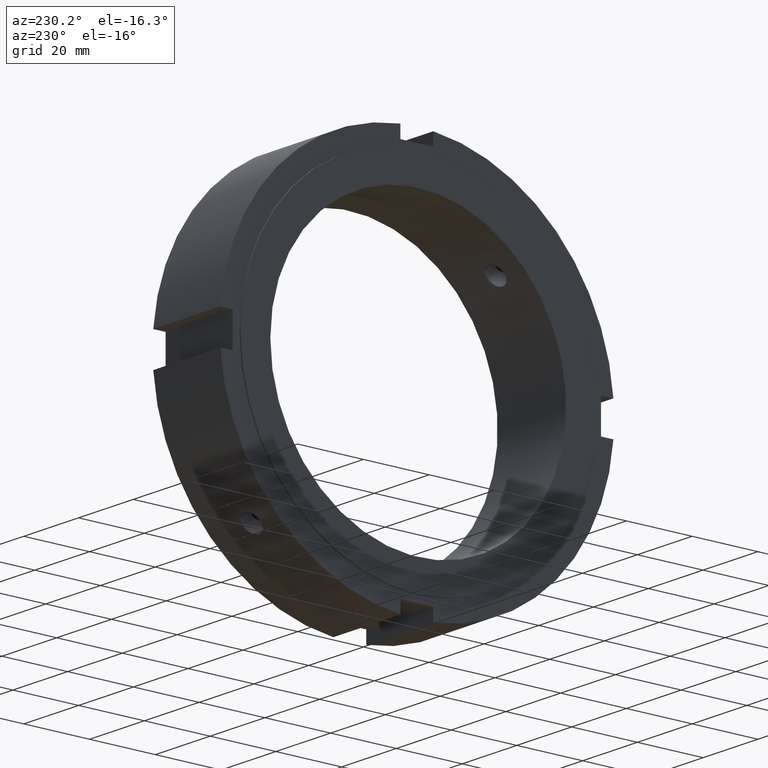
[diagram: clean part render]
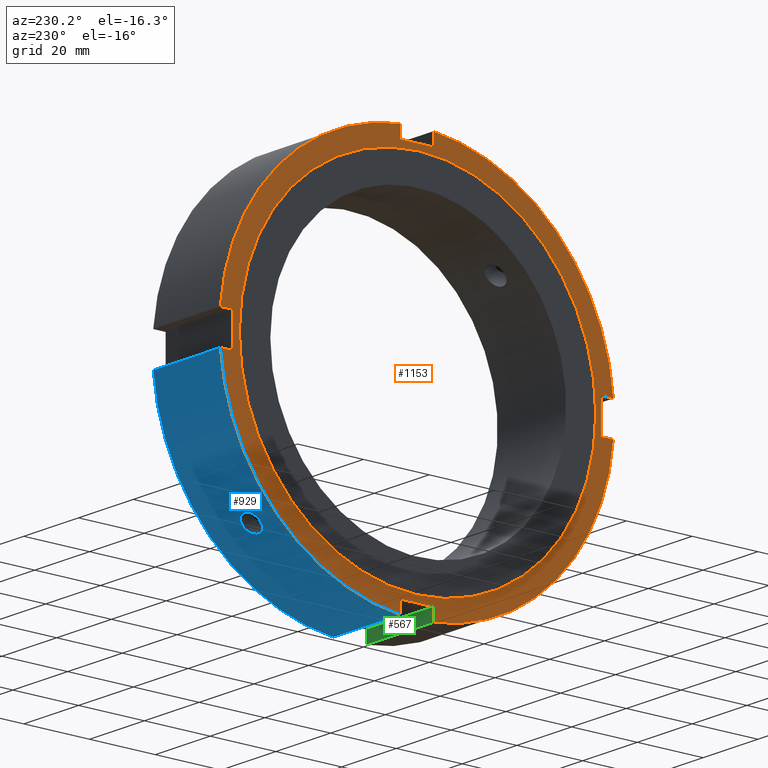
[diagram: same view with three faces highlighted in distinct colors, each labeled with its STEP entity id]
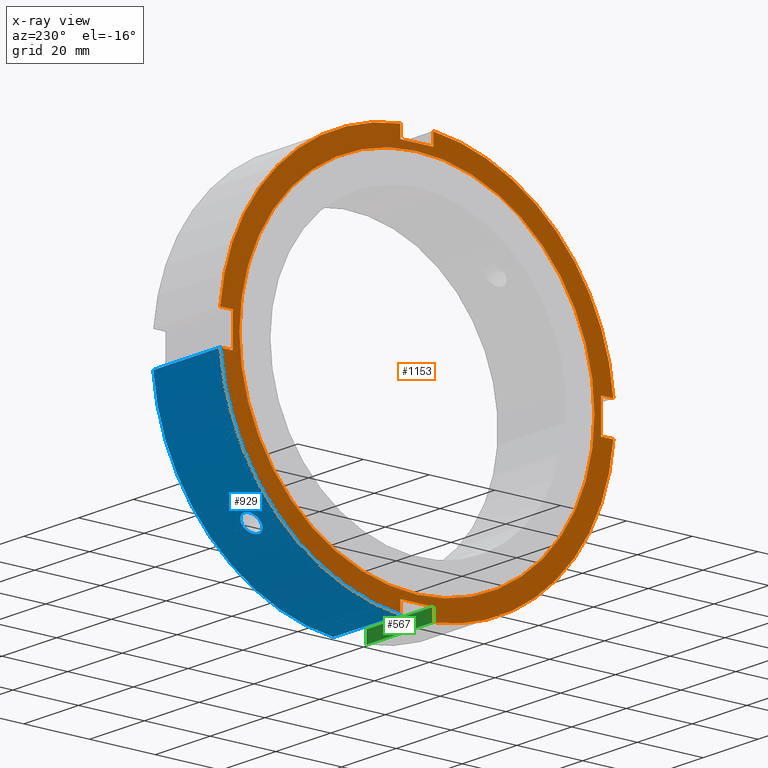
[diagram: x-ray of the same camera — body ghosted, the three highlighted faces saturated]
A machine part, auxiliary view with three faces highlighted in distinct colors.
The next image is the same camera in x-ray (body ghosted, the three faces saturated) — at least one of them is partly hidden behind the body in this view.
Their STEP definitions:

[orange] entity #1153 — the highlighted planar face has unit normal (-1, 0, 0).
#533=CARTESIAN_POINT('',(0.499999999999985,-5.000000000000008,-56.0));
#534=VERTEX_POINT('',#533);
#535=CARTESIAN_POINT('',(0.499999999999985,-5.000000000000007,-59.791303715506992));
#536=VERTEX_POINT('',#535);
#537=CARTESIAN_POINT('',(0.499999999999985,-5.00000000000001,-56.0));
#538=DIRECTION('',(0.0,0.0,-1.0));
#539=VECTOR('',#538,3.791303715506992);
#540=LINE('',#537,#539);
#541=EDGE_CURVE('',#534,#536,#540,.T.);
#573=CARTESIAN_POINT('',(0.499999999999985,4.999999999999985,-59.791303715506992));
#574=VERTEX_POINT('',#573);
#575=CARTESIAN_POINT('',(0.499999999999985,4.999999999999988,-56.0));
#576=VERTEX_POINT('',#575);
#577=CARTESIAN_POINT('',(0.499999999999985,4.999999999999981,-59.791303715506992));
#578=DIRECTION('',(0.0,0.0,1.0));
#579=VECTOR('',#578,3.791303715506992);
#580=LINE('',#577,#579);
#581=EDGE_CURVE('',#574,#576,#580,.T.);
#613=CARTESIAN_POINT('',(0.499999999999985,4.999999999999986,-55.999999999999993));
#614=DIRECTION('',(0.0,-1.0,0.0));
#615=VECTOR('',#614,9.999999999999993);
#616=LINE('',#613,#615);
#617=EDGE_CURVE('',#576,#534,#616,.T.);
#635=CARTESIAN_POINT('',(0.499999999999985,-56.0,5.000000000000004));
#636=VERTEX_POINT('',#635);
#637=CARTESIAN_POINT('',(0.499999999999985,-59.791303715506992,5.000000000000004));
#638=VERTEX_POINT('',#637);
#639=CARTESIAN_POINT('',(0.499999999999985,-55.999999999999993,5.000000000000004));
#640=DIRECTION('',(0.0,-1.0,0.0));
#641=VECTOR('',#640,3.791303715506999);
#642=LINE('',#639,#641);
#643=EDGE_CURVE('',#636,#638,#642,.T.);
#675=CARTESIAN_POINT('',(0.499999999999985,-59.791303715506992,-4.999999999999989));
#676=VERTEX_POINT('',#675);
#677=CARTESIAN_POINT('',(0.499999999999985,-56.0,-4.99999999999999));
#678=VERTEX_POINT('',#677);
#679=CARTESIAN_POINT('',(0.499999999999985,-59.791303715506984,-4.999999999999989));
#680=DIRECTION('',(0.0,1.0,0.0));
#681=VECTOR('',#680,3.791303715506992);
#682=LINE('',#679,#681);
#683=EDGE_CURVE('',#676,#678,#682,.T.);
#715=CARTESIAN_POINT('',(0.499999999999985,-56.0,-4.999999999999991));
#716=DIRECTION('',(0.0,0.0,1.0));
#717=VECTOR('',#716,9.999999999999996);
#718=LINE('',#715,#717);
#719=EDGE_CURVE('',#678,#636,#718,.T.);
#737=CARTESIAN_POINT('',(0.499999999999985,5.000000000000001,56.0));
#738=VERTEX_POINT('',#737);
#739=CARTESIAN_POINT('',(0.499999999999985,5.0,59.791303715506992));
#740=VERTEX_POINT('',#739);
#741=CARTESIAN_POINT('',(0.499999999999985,4.999999999999998,56.0));
#742=DIRECTION('',(0.0,0.0,1.0));
#743=VECTOR('',#742,3.791303715506992);
#744=LINE('',#741,#743);
#745=EDGE_CURVE('',#738,#740,#744,.T.);
#777=CARTESIAN_POINT('',(0.499999999999985,-4.999999999999992,59.791303715506992));
#778=VERTEX_POINT('',#777);
#779=CARTESIAN_POINT('',(0.499999999999985,-4.999999999999994,56.0));
#780=VERTEX_POINT('',#779);
#781=CARTESIAN_POINT('',(0.499999999999985,-4.999999999999989,59.791303715506992));
#782=DIRECTION('',(0.0,0.0,-1.0));
#783=VECTOR('',#782,3.791303715506992);
#784=LINE('',#781,#783);
#785=EDGE_CURVE('',#778,#780,#784,.T.);
#817=CARTESIAN_POINT('',(0.499999999999985,-4.999999999999993,56.0));
#818=DIRECTION('',(0.0,1.0,0.0));
#819=VECTOR('',#818,9.999999999999993);
#820=LINE('',#817,#819);
#821=EDGE_CURVE('',#780,#738,#820,.T.);
#849=CARTESIAN_POINT('',(0.499999999999985,59.791303715506992,4.999999999999996));
#850=VERTEX_POINT('',#849);
#857=CARTESIAN_POINT('',(0.499999999999985,0.0,0.0));
#858=DIRECTION('',(1.0,0.0,0.0));
#859=DIRECTION('',(0.0,1.0,0.0));
#860=AXIS2_PLACEMENT_3D('',#857,#858,#859);
#861=CIRCLE('',#860,60.0);
#862=EDGE_CURVE('',#850,#740,#861,.T.);
#881=CARTESIAN_POINT('',(0.499999999999985,0.0,0.0));
#882=DIRECTION('',(1.0,0.0,0.0));
#883=DIRECTION('',(0.0,1.0,0.0));
#884=AXIS2_PLACEMENT_3D('',#881,#882,#883);
#885=CIRCLE('',#884,60.0);
#886=EDGE_CURVE('',#778,#638,#885,.T.);
#900=CARTESIAN_POINT('',(0.499999999999985,59.791303715506992,-4.999999999999996));
#901=VERTEX_POINT('',#900);
#902=CARTESIAN_POINT('',(0.499999999999985,0.0,0.0));
#903=DIRECTION('',(1.0,0.0,0.0));
#904=DIRECTION('',(0.0,1.0,0.0));
#905=AXIS2_PLACEMENT_3D('',#902,#903,#904);
#906=CIRCLE('',#905,60.0);
#907=EDGE_CURVE('',#574,#901,#906,.T.);
#944=CARTESIAN_POINT('',(0.499999999999985,0.0,0.0));
#945=DIRECTION('',(1.0,0.0,0.0));
#946=DIRECTION('',(0.0,1.0,0.0));
#947=AXIS2_PLACEMENT_3D('',#944,#945,#946);
#948=CIRCLE('',#947,60.0);
#949=EDGE_CURVE('',#676,#536,#948,.T.);
#1019=CARTESIAN_POINT('',(0.499999999999985,56.0,-4.999999999999997));
#1020=VERTEX_POINT('',#1019);
#1021=CARTESIAN_POINT('',(0.499999999999985,55.999999999999993,-4.999999999999997));
#1022=DIRECTION('',(0.0,1.0,0.0));
#1023=VECTOR('',#1022,3.791303715506992);
#1024=LINE('',#1021,#1023);
#1025=EDGE_CURVE('',#1020,#901,#1024,.T.);
#1043=CARTESIAN_POINT('',(0.499999999999985,56.0,4.999999999999997));
#1044=VERTEX_POINT('',#1043);
#1045=CARTESIAN_POINT('',(0.499999999999985,59.791303715506999,4.999999999999996));
#1046=DIRECTION('',(0.0,-1.0,0.0));
#1047=VECTOR('',#1046,3.791303715506999);
#1048=LINE('',#1045,#1047);
#1049=EDGE_CURVE('',#850,#1044,#1048,.T.);
#1067=CARTESIAN_POINT('',(0.499999999999985,56.0,4.999999999999997));
#1068=DIRECTION('',(0.0,0.0,-1.0));
#1069=VECTOR('',#1068,9.999999999999993);
#1070=LINE('',#1067,#1069);
#1071=EDGE_CURVE('',#1044,#1020,#1070,.T.);
#1112=CARTESIAN_POINT('',(0.499999999999985,54.0,0.0));
#1113=VERTEX_POINT('',#1112);
#1114=CARTESIAN_POINT('',(0.499999999999985,0.0,0.0));
#1115=DIRECTION('',(1.0,0.0,0.0));
#1116=DIRECTION('',(0.0,1.0,0.0));
#1117=AXIS2_PLACEMENT_3D('',#1114,#1115,#1116);
#1118=CIRCLE('',#1117,54.0);
#1119=EDGE_CURVE('',#1113,#1113,#1118,.T.);
#1127=CARTESIAN_POINT('',(0.499999999999985,57.0,0.0));
#1128=DIRECTION('',(-1.0,0.0,0.0));
#1129=DIRECTION('',(0.0,0.0,1.0));
#1130=AXIS2_PLACEMENT_3D('',#1127,#1128,#1129);
#1131=PLANE('',#1130);
#1132=ORIENTED_EDGE('',*,*,#541,.T.);
#1133=ORIENTED_EDGE('',*,*,#949,.F.);
#1134=ORIENTED_EDGE('',*,*,#683,.T.);
#1135=ORIENTED_EDGE('',*,*,#719,.T.);
#1136=ORIENTED_EDGE('',*,*,#643,.T.);
#1137=ORIENTED_EDGE('',*,*,#886,.F.);
#1138=ORIENTED_EDGE('',*,*,#785,.T.);
#1139=ORIENTED_EDGE('',*,*,#821,.T.);
#1140=ORIENTED_EDGE('',*,*,#745,.T.);
#1141=ORIENTED_EDGE('',*,*,#862,.F.);
#1142=ORIENTED_EDGE('',*,*,#1049,.T.);
#1143=ORIENTED_EDGE('',*,*,#1071,.T.);
#1144=ORIENTED_EDGE('',*,*,#1025,.T.);
#1145=ORIENTED_EDGE('',*,*,#907,.F.);
#1146=ORIENTED_EDGE('',*,*,#581,.T.);
#1147=ORIENTED_EDGE('',*,*,#617,.T.);
#1148=EDGE_LOOP('',(#1132,#1133,#1134,#1135,#1136,#1137,#1138,#1139,#1140,#1141,#1142,#1143,#1144,#1145,#1146,#1147));
#1149=FACE_OUTER_BOUND('',#1148,.T.);
#1150=ORIENTED_EDGE('',*,*,#1119,.T.);
#1151=EDGE_LOOP('',(#1150));
#1152=FACE_BOUND('',#1151,.T.);
#1153=ADVANCED_FACE('',(#1149,#1152),#1131,.T.);

[blue] entity #929 — the highlighted cylindrical surface (partial cylindrical patch) has radius 60 mm, axis along (1, 0, 0).
#439=CARTESIAN_POINT('',(9.999999999999986,40.177710539959762,-44.561772583316369));
#440=VERTEX_POINT('',#439);
#441=CARTESIAN_POINT('',(9.999999999999986,40.177710539959762,-44.561772583316362));
#442=CARTESIAN_POINT('',(10.389317314870894,40.177710539959762,-44.561772583316362));
#443=CARTESIAN_POINT('',(10.804537133935288,40.235696132911201,-44.509705000042132));
#444=CARTESIAN_POINT('',(11.568292560447617,40.470107207976056,-44.296676004376877));
#445=CARTESIAN_POINT('',(11.916834043552363,40.646376029251726,-44.135563328041485));
#446=CARTESIAN_POINT('',(12.467227933512323,41.049791288379211,-43.760604083340304));
#447=CARTESIAN_POINT('',(12.705792728008609,41.303821013147868,-43.521721672975048));
#448=CARTESIAN_POINT('',(13.022180679067262,41.854558665123029,-42.992345907300837));
#449=CARTESIAN_POINT('',(13.099999999999987,42.151118024128323,-42.701695718257383));
#450=CARTESIAN_POINT('',(13.099999999999987,42.701695718257383,-42.151118024128337));
#451=CARTESIAN_POINT('',(13.022180679067262,42.992345907300837,-41.854558665123022));
#452=CARTESIAN_POINT('',(12.705792728008605,43.521721672975048,-41.303821013147861));
#453=CARTESIAN_POINT('',(12.467227933512323,43.760604083340297,-41.049791288379197));
#454=CARTESIAN_POINT('',(11.916834043552358,44.135563328041471,-40.646376029251712));
#455=CARTESIAN_POINT('',(11.568292560447617,44.296676004376877,-40.470107207976056));
#456=CARTESIAN_POINT('',(10.804537133935284,44.509705000042118,-40.235696132911201));
#457=CARTESIAN_POINT('',(10.389317314870892,44.561772583316355,-40.177710539959762));
#458=CARTESIAN_POINT('',(9.610682685129081,44.561772583316355,-40.177710539959762));
#459=CARTESIAN_POINT('',(9.195462866064688,44.509705000042118,-40.235696132911201));
#460=CARTESIAN_POINT('',(8.431707439552357,44.296676004376877,-40.470107207976056));
#461=CARTESIAN_POINT('',(8.083165956447614,44.135563328041471,-40.646376029251712));
#462=CARTESIAN_POINT('',(7.53277206648765,43.760604083340297,-41.049791288379197));
#463=CARTESIAN_POINT('',(7.294207271991371,43.521721672975062,-41.303821013147861));
#464=CARTESIAN_POINT('',(6.977819320932717,42.992345907300844,-41.854558665123022));
#465=CARTESIAN_POINT('',(6.899999999999986,42.701695718257383,-42.151118024128337));
#466=CARTESIAN_POINT('',(6.899999999999986,42.151118024128323,-42.701695718257383));
#467=CARTESIAN_POINT('',(6.977819320932711,41.854558665123029,-42.992345907300837));
#468=CARTESIAN_POINT('',(7.294207271991363,41.303821013147868,-43.521721672975048));
#469=CARTESIAN_POINT('',(7.532772066487651,41.049791288379211,-43.760604083340304));
#470=CARTESIAN_POINT('',(8.083165956447612,40.646376029251726,-44.135563328041485));
#471=CARTESIAN_POINT('',(8.431707439552355,40.470107207976056,-44.296676004376863));
#472=CARTESIAN_POINT('',(9.195462866064686,40.235696132911201,-44.509705000042132));
#473=CARTESIAN_POINT('',(9.610682685129081,40.177710539959762,-44.561772583316362));
#474=CARTESIAN_POINT('',(9.999999999999986,40.177710539959762,-44.561772583316362));
#475=B_SPLINE_CURVE_WITH_KNOTS('',3,(#441,#442,#443,#444,#445,#446,#447,#448,#449,#450,#451,#452,#453,#454,#455,#456,#457,#458,#459,#460,#461,#462,#463,#464,#465,#466,#467,#468,#469,#470,#471,#472,#473,#474),.UNSPECIFIED.,.T.,.U.,(4,2,2,2,2,2,2,2,2,2,2,2,2,2,2,2,4),(0.0,0.116795194461272,0.233590388922543,0.350385555249154,0.467180721575765,0.583975887902377,0.700771054228988,0.81756624869026,0.934361443151531,1.051156637612802,1.167951832074074,1.284746998400685,1.401542164727297,1.518337331053908,1.635132497380519,1.75192769184179,1.868722886303062),.UNSPECIFIED.);
#476=EDGE_CURVE('',#440,#440,#475,.T.);
#573=CARTESIAN_POINT('',(0.499999999999985,4.999999999999985,-59.791303715506992));
#574=VERTEX_POINT('',#573);
#583=CARTESIAN_POINT('',(24.999999999999982,4.999999999999985,-59.791303715506992));
#584=VERTEX_POINT('',#583);
#585=CARTESIAN_POINT('',(24.999999999999982,4.999999999999985,-59.791303715506992));
#586=DIRECTION('',(-1.0,0.0,0.0));
#587=VECTOR('',#586,24.499999999999996);
#588=LINE('',#585,#587);
#589=EDGE_CURVE('',#584,#574,#588,.T.);
#894=CARTESIAN_POINT('',(12.749999999999984,0.0,0.0));
#895=DIRECTION('',(1.0,0.0,0.0));
#896=DIRECTION('',(0.0,1.0,0.0));
#897=AXIS2_PLACEMENT_3D('',#894,#895,#896);
#898=CYLINDRICAL_SURFACE('',#897,60.0);
#899=ORIENTED_EDGE('',*,*,#589,.T.);
#900=CARTESIAN_POINT('',(0.499999999999985,59.791303715506992,-4.999999999999996));
#901=VERTEX_POINT('',#900);
#902=CARTESIAN_POINT('',(0.499999999999985,0.0,0.0));
#903=DIRECTION('',(1.0,0.0,0.0));
#904=DIRECTION('',(0.0,1.0,0.0));
#905=AXIS2_PLACEMENT_3D('',#902,#903,#904);
#906=CIRCLE('',#905,60.0);
#907=EDGE_CURVE('',#574,#901,#906,.T.);
#908=ORIENTED_EDGE('',*,*,#907,.T.);
#909=CARTESIAN_POINT('',(24.999999999999982,59.791303715506992,-4.999999999999996));
#910=VERTEX_POINT('',#909);
#911=CARTESIAN_POINT('',(0.499999999999986,59.791303715506992,-4.999999999999996));
#912=DIRECTION('',(1.0,0.0,0.0));
#913=VECTOR('',#912,24.499999999999996);
#914=LINE('',#911,#913);
#915=EDGE_CURVE('',#901,#910,#914,.T.);
#916=ORIENTED_EDGE('',*,*,#915,.T.);
#917=CARTESIAN_POINT('',(24.999999999999982,0.0,0.0));
#918=DIRECTION('',(1.0,0.0,0.0));
#919=DIRECTION('',(0.0,1.0,0.0));
#920=AXIS2_PLACEMENT_3D('',#917,#918,#919);
#921=CIRCLE('',#920,60.0);
#922=EDGE_CURVE('',#584,#910,#921,.T.);
#923=ORIENTED_EDGE('',*,*,#922,.F.);
#924=EDGE_LOOP('',(#899,#908,#916,#923));
#925=FACE_OUTER_BOUND('',#924,.T.);
#926=ORIENTED_EDGE('',*,*,#476,.T.);
#927=EDGE_LOOP('',(#926));
#928=FACE_BOUND('',#927,.T.);
#929=ADVANCED_FACE('',(#925,#928),#898,.T.);

[green] entity #567 — the highlighted planar face has unit normal (0, -1, 0).
#528=CARTESIAN_POINT('',(24.999999999999982,-5.000000000000008,-56.0));
#529=DIRECTION('',(0.0,-1.0,0.0));
#530=DIRECTION('',(-1.0,0.0,0.0));
#531=AXIS2_PLACEMENT_3D('',#528,#529,#530);
#532=PLANE('',#531);
#533=CARTESIAN_POINT('',(0.499999999999985,-5.000000000000008,-56.0));
#534=VERTEX_POINT('',#533);
#535=CARTESIAN_POINT('',(0.499999999999985,-5.000000000000007,-59.791303715506992));
#536=VERTEX_POINT('',#535);
#537=CARTESIAN_POINT('',(0.499999999999985,-5.00000000000001,-56.0));
#538=DIRECTION('',(0.0,0.0,-1.0));
#539=VECTOR('',#538,3.791303715506992);
#540=LINE('',#537,#539);
#541=EDGE_CURVE('',#534,#536,#540,.T.);
#542=ORIENTED_EDGE('',*,*,#541,.F.);
#543=CARTESIAN_POINT('',(24.999999999999982,-5.000000000000008,-56.0));
#544=VERTEX_POINT('',#543);
#545=CARTESIAN_POINT('',(24.999999999999982,-5.000000000000008,-56.0));
#546=DIRECTION('',(-1.0,0.0,0.0));
#547=VECTOR('',#546,24.499999999999996);
#548=LINE('',#545,#547);
#549=EDGE_CURVE('',#544,#534,#548,.T.);
#550=ORIENTED_EDGE('',*,*,#549,.F.);
#551=CARTESIAN_POINT('',(24.999999999999982,-5.000000000000007,-59.791303715506992));
#552=VERTEX_POINT('',#551);
#553=CARTESIAN_POINT('',(24.999999999999982,-5.000000000000011,-59.791303715506992));
#554=DIRECTION('',(0.0,0.0,1.0));
#555=VECTOR('',#554,3.791303715506992);
#556=LINE('',#553,#555);
#557=EDGE_CURVE('',#552,#544,#556,.T.);
#558=ORIENTED_EDGE('',*,*,#557,.F.);
#559=CARTESIAN_POINT('',(0.499999999999986,-5.000000000000008,-59.791303715506992));
#560=DIRECTION('',(1.0,0.0,0.0));
#561=VECTOR('',#560,24.499999999999996);
#562=LINE('',#559,#561);
#563=EDGE_CURVE('',#536,#552,#562,.T.);
#564=ORIENTED_EDGE('',*,*,#563,.F.);
#565=EDGE_LOOP('',(#542,#550,#558,#564));
#566=FACE_OUTER_BOUND('',#565,.T.);
#567=ADVANCED_FACE('',(#566),#532,.F.);